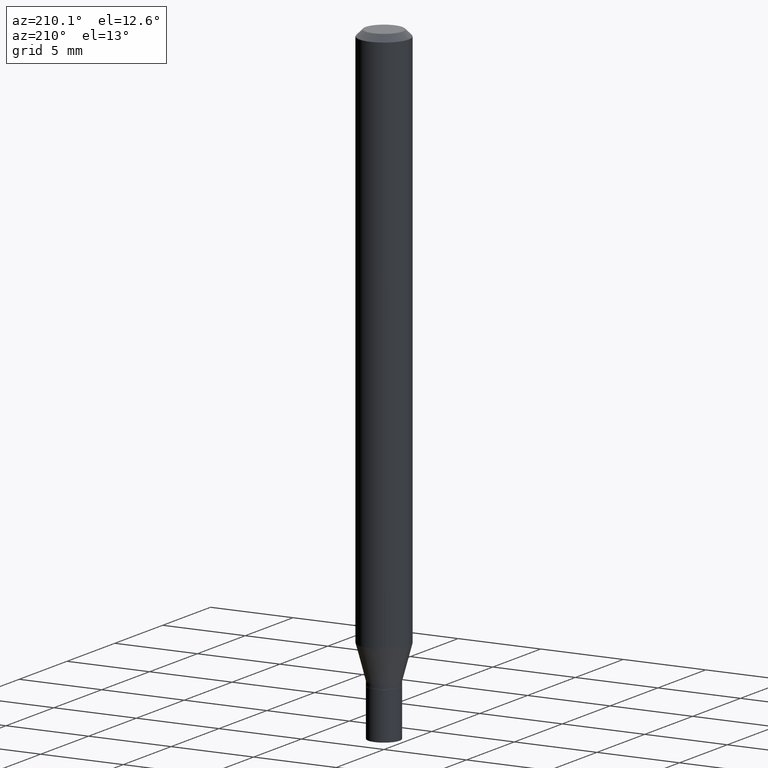
[diagram: clean part render]
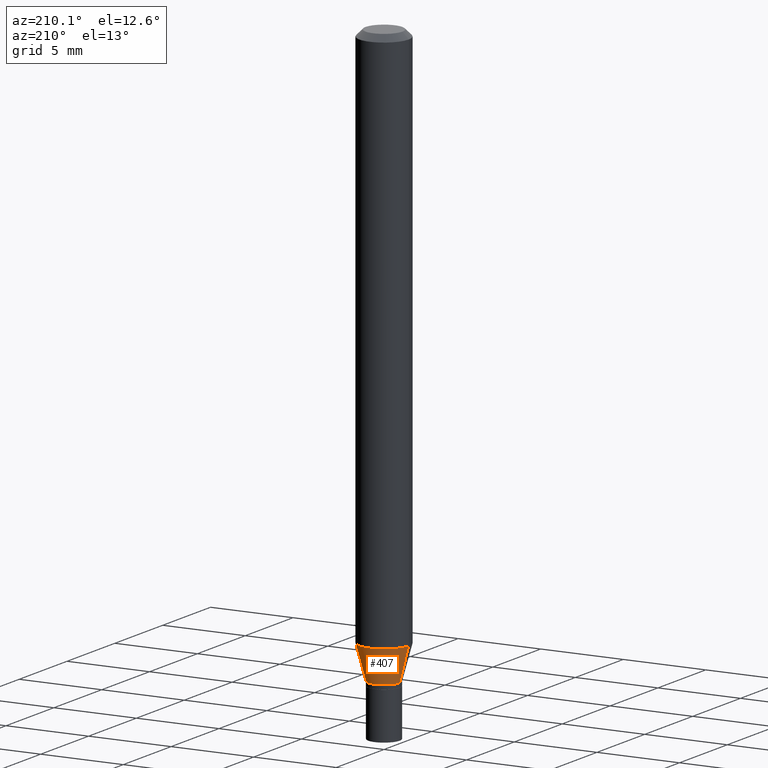
[diagram: same view with one face highlighted and labeled with its STEP entity id]
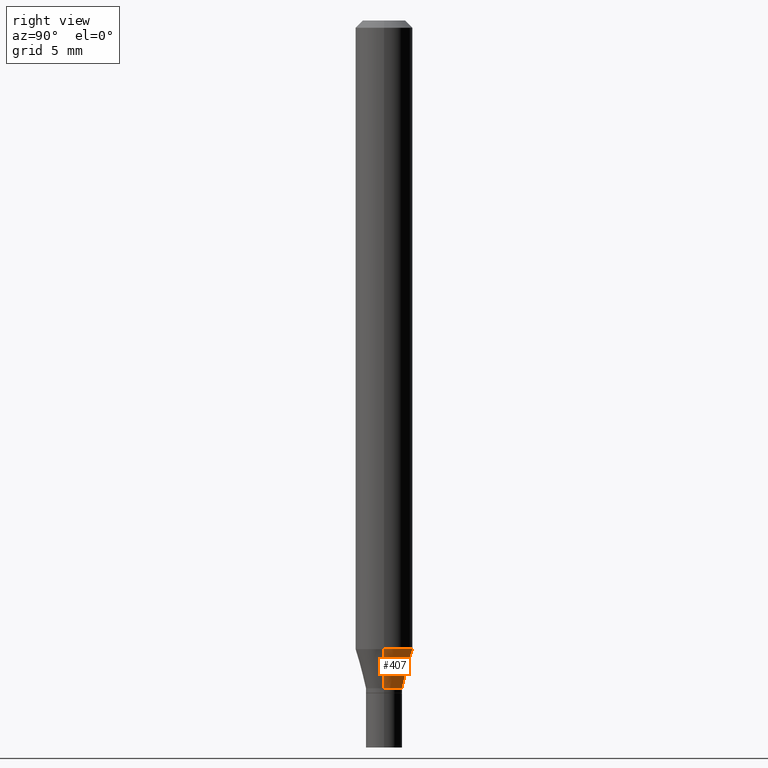
[diagram: same view with one face highlighted and labeled with its STEP entity id]
A machine part, auxiliary view. The second image highlights one B-rep face of the part: STEP entity #407.
A second angle (right view) of the same face is appended — the face is thin or edge-on in the first view.
In plain terms, the highlighted conical surface has half-angle 15 deg.
Its self-contained STEP definition (entity closure, byte-faithful):
#6 = AXIS2_PLACEMENT_3D ( 'NONE', #276, #61, #321 ) ;
#9 = LINE ( 'NONE', #150, #345 ) ;
#40 = CIRCLE ( 'NONE', #69, 0.05904999999999999832 ) ;
#61 = DIRECTION ( 'NONE',  ( -2.445468806185136597E-29, 3.491481338843145583E-15, 1.000000000000000000 ) ) ;
#69 = AXIS2_PLACEMENT_3D ( 'NONE', #460, #136, #206 ) ;
#75 = ORIENTED_EDGE ( 'NONE', *, *, #101, .T. ) ;
#81 = VERTEX_POINT ( 'NONE', #107 ) ;
#93 = CONICAL_SURFACE ( 'NONE', #6, 0.03740000000000019004, 0.2617993877991501850 ) ;
#97 = LINE ( 'NONE', #429, #126 ) ;
#98 = FACE_OUTER_BOUND ( 'NONE', #443, .T. ) ;
#101 = EDGE_CURVE ( 'NONE', #125, #81, #97, .T. ) ;
#107 = CARTESIAN_POINT ( 'NONE',  ( -0.05904999999999999832, -4.108879651699028783E-15, -1.297001100016135000 ) ) ;
#112 = ORIENTED_EDGE ( 'NONE', *, *, #145, .F. ) ;
#123 = ORIENTED_EDGE ( 'NONE', *, *, #139, .T. ) ;
#125 = VERTEX_POINT ( 'NONE', #360 ) ;
#126 = VECTOR ( 'NONE', #241, 39.37007874015748143 ) ;
#136 = DIRECTION ( 'NONE',  ( -2.445468806185136597E-29, 3.491481338843145583E-15, 1.000000000000000000 ) ) ;
#139 = EDGE_CURVE ( 'NONE', #362, #125, #223, .T. ) ;
#145 = EDGE_CURVE ( 'NONE', #401, #81, #40, .T. ) ;
#150 = CARTESIAN_POINT ( 'NONE',  ( 0.03740000000000019004, -5.071725792803554116E-15, -1.377800000000000358 ) ) ;
#161 = CARTESIAN_POINT ( 'NONE',  ( 3.369366921161882060E-29, -4.810562988658086927E-15, -1.377800000000000358 ) ) ;
#175 = AXIS2_PLACEMENT_3D ( 'NONE', #161, #357, #213 ) ;
#189 = CARTESIAN_POINT ( 'NONE',  ( 0.05904999999999999832, -4.940799083282741618E-15, -1.297001100016135000 ) ) ;
#206 = DIRECTION ( 'NONE',  ( 1.000000000000000000, -6.982962677686273021E-15, 0.000000000000000000 ) ) ;
#213 = DIRECTION ( 'NONE',  ( 1.000000000000000000, -6.982962677686265922E-15, 0.000000000000000000 ) ) ;
#221 = CARTESIAN_POINT ( 'NONE',  ( 0.03740000000000019004, -5.071725792803554116E-15, -1.377800000000000358 ) ) ;
#223 = CIRCLE ( 'NONE', #175, 0.03740000000000019004 ) ;
#241 = DIRECTION ( 'NONE',  ( -0.2588190451025214611, 5.211531920934550253E-15, 0.9659258262890679791 ) ) ;
#259 = ORIENTED_EDGE ( 'NONE', *, *, #367, .F. ) ;
#276 = CARTESIAN_POINT ( 'NONE',  ( 3.369366921161882060E-29, -4.810562988658086927E-15, -1.377800000000000358 ) ) ;
#321 = DIRECTION ( 'NONE',  ( 1.000000000000000000, -6.982962677686265922E-15, 0.000000000000000000 ) ) ;
#340 = DIRECTION ( 'NONE',  ( 0.2588190451025214611, 1.565188264969620982E-15, 0.9659258262890679791 ) ) ;
#345 = VECTOR ( 'NONE', #340, 39.37007874015748143 ) ;
#357 = DIRECTION ( 'NONE',  ( -2.445468806185136597E-29, 3.491481338843145583E-15, 1.000000000000000000 ) ) ;
#360 = CARTESIAN_POINT ( 'NONE',  ( -0.03740000000000019004, -4.326849828591418371E-15, -1.377800000000000358 ) ) ;
#362 = VERTEX_POINT ( 'NONE', #221 ) ;
#367 = EDGE_CURVE ( 'NONE', #362, #401, #9, .T. ) ;
#401 = VERTEX_POINT ( 'NONE', #189 ) ;
#407 = ADVANCED_FACE ( 'NONE', ( #98 ), #93, .T. ) ;
#429 = CARTESIAN_POINT ( 'NONE',  ( -0.03740000000000019004, -4.544820005483808748E-15, -1.377800000000000358 ) ) ;
#443 = EDGE_LOOP ( 'NONE', ( #123, #75, #112, #259 ) ) ;
#460 = CARTESIAN_POINT ( 'NONE',  ( 3.171775731677266837E-29, -4.528455137165367487E-15, -1.297001100016135000 ) ) ;